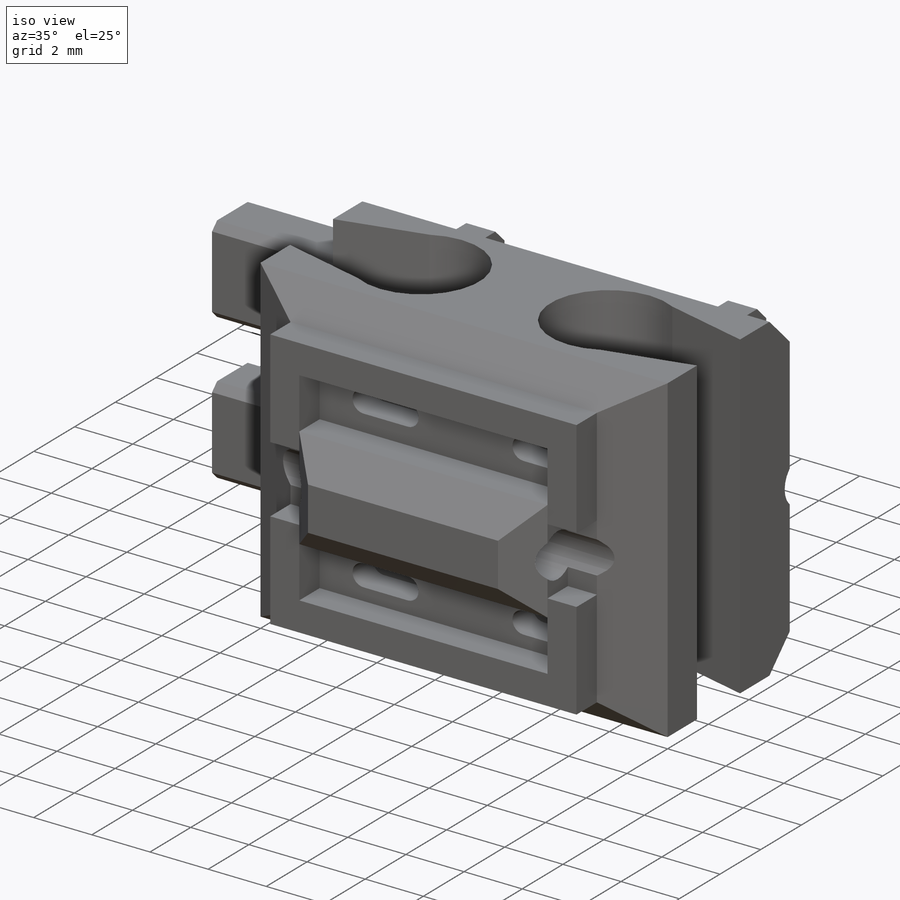
[diagram: iso view]
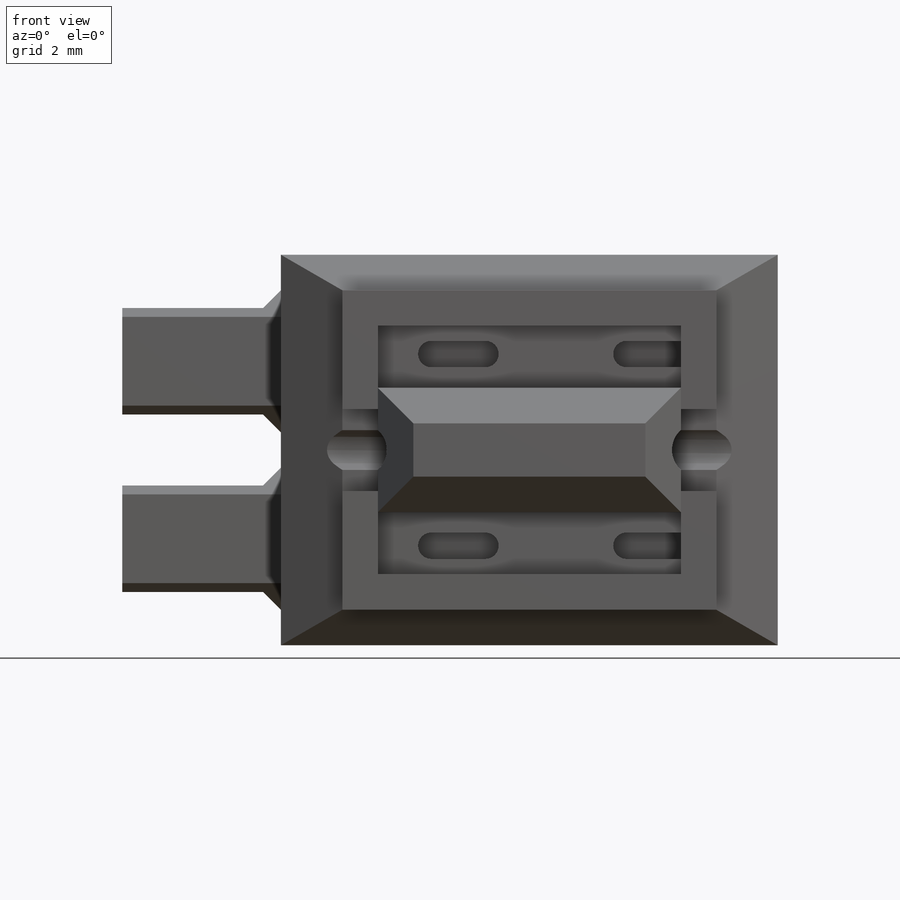
[diagram: front view]
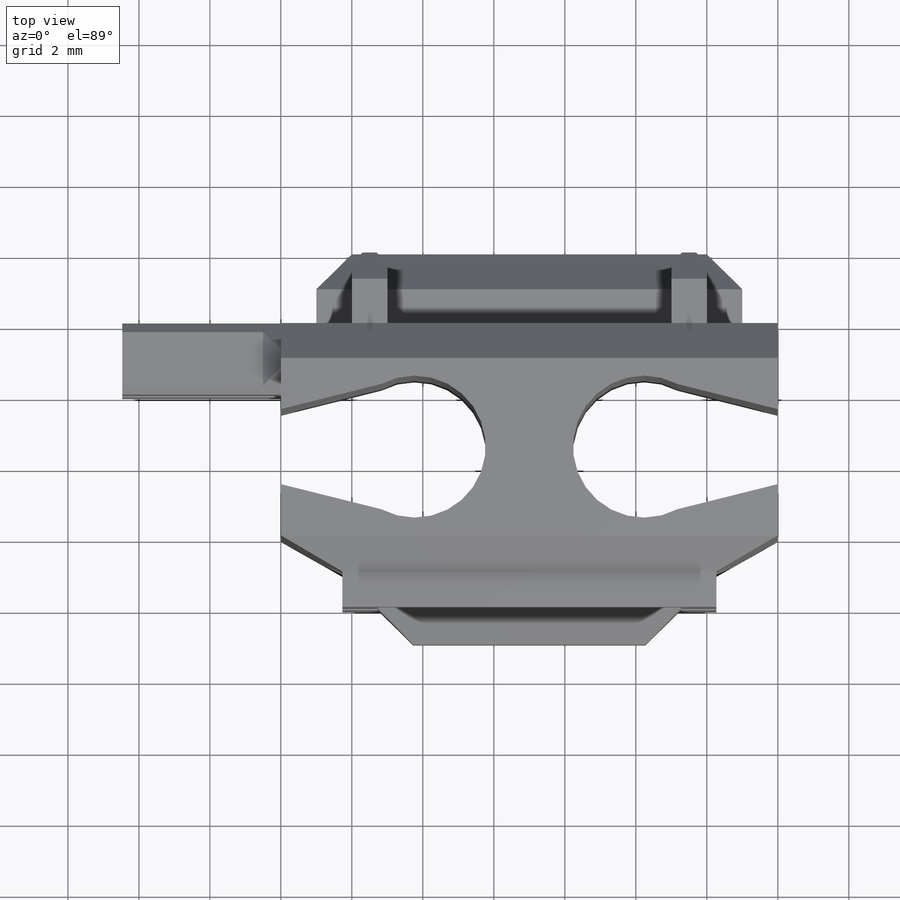
[diagram: top view]
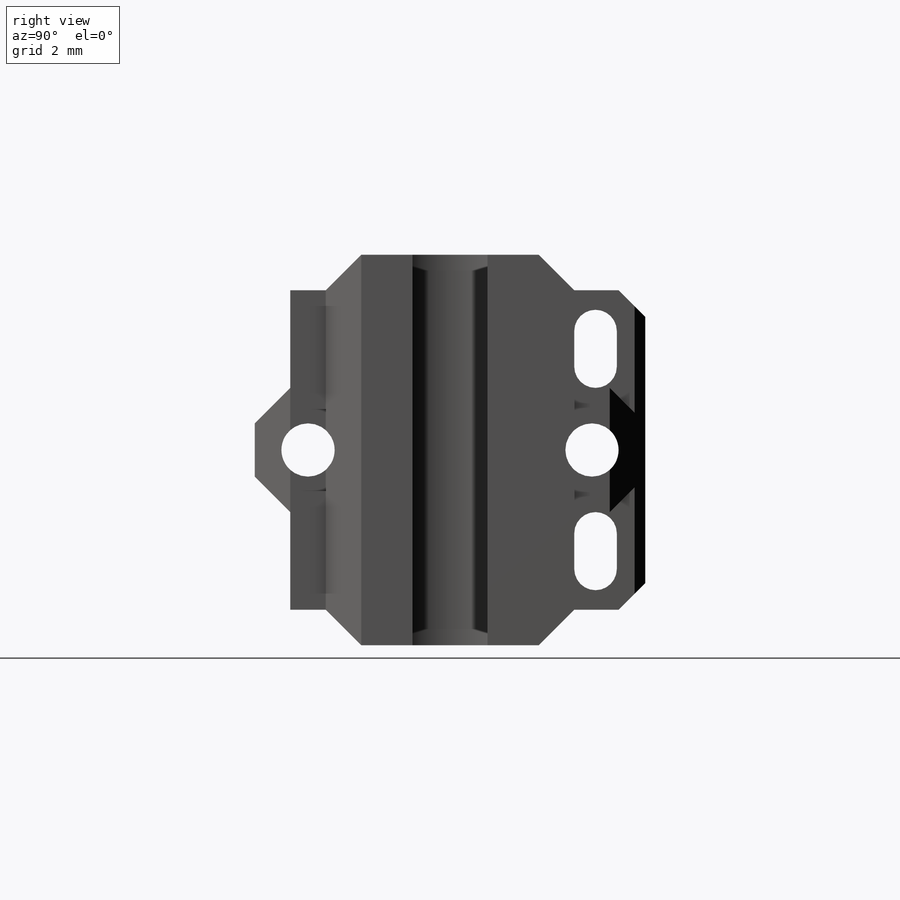
[diagram: right view]
SOLIDWORKS PART (.sldprt)
format: sldprt  version: not decoded by parser v0  size: 615,936 bytes
history: native  units: mm
features: sketch x11, chamfer x9, extrude x6, cut_extrude x5, material x1 (+17 scaffold rows collapsed; 4 parser-record rows omitted)
feature tree (53):
  scaffold x17  (default folders/planes/origin — collapsed)
  material  "Material <not specified>"
  parser-record x4  (decoder bookkeeping rows leaked as tree rows — omitted from the tree; the rows remain in map.json)
  sketch  "Base"  dims[D1=14.0mm D2=11.0mm]
  extrude  "Phalange shape"  Depth=7mm
  chamfer  "Chamfer4"  Distance=1mm Angle=45deg
  chamfer  "Chamfer5"  Distance=1mm Angle=60deg
  chamfer  "Chamfer6"  Distance=1mm Angle=45deg
  sketch  "Sketch8"  dims[D1=1.75mm D2=1.0mm D3=1.0mm]
  extrude  "Ligament inside"  Depth=2mm
  sketch  "Sketch9"  dims[D1=1.5mm D2=1.5mm]
  cut_extrude  "Ligament inside hole"  Depth=34.5mm
  chamfer  "Chamfer9"  Distance=1mm Angle=45deg
  sketch  "Sketch10"  dims[D1=1.75mm D2=1.0mm D3=1.0mm]
  extrude  "Ligament outside"  Depth=2mm
  sketch  "Sketch11"  dims[D1=1.5mm D2=1.5mm]
  cut_extrude  "Ligament outside hole"  Depth=36.5mm
  chamfer  "Chamfer11"  Distance=1mm Angle=45deg
  sketch  "Tendon extrude"  dims[D1=4.0mm D2=3.77mm D3=1.0mm D4=6.0mm D5=6.0mm]
  cut_extrude  "Tendons fixation"  Depth=11mm
  sketch  "Sketch12"  dims[D1=3.5mm D2=1.0mm]
  extrude  "Boss-Extrude7"  Depth=2mm
  sketch  "Sketch13"  dims[c1.D1=1.2mm c1.D2=0.6mm c1.D3=0.6mm c1.D4=0.6mm c1.D5=1.0mm c1.D6=0.2mm c2.D1=0.0mm]
  cut_extrude  "Touch sensor wire gauge"  Depth=12mm
  chamfer  "Chamfer12"  Distance=0.3mm Angle=45deg
  chamfer  "Chamfer13"  Distance=0.75mm Angle=45deg
  sketch  "Sketch15"  dims[c1.D1=2.0mm c1.D2=0.3mm c1.D3=3.0mm c1.D4=1.0mm c2.D2=0.5mm]
  extrude  "Boss-Extrude8"  Depth=4.47mm
  chamfer  "Chamfer14"  Distance=0.25mm Angle=45deg
  chamfer  "Chamfer15"  Distance=0.5mm Angle=45deg
  sketch  "Sketch16"
  extrude  "Boss-Extrude9"  Depth=1mm
  sketch  "Sketch17"  dims[D1=0.8mm D2=0.8mm]
  cut_extrude  "Cut-Extrude1"  Depth=1mm
decode coverage: 30 of 31 modeling features carry decoded parameters
note: suppression state not decoded; provenance and decode notes live in map.json
